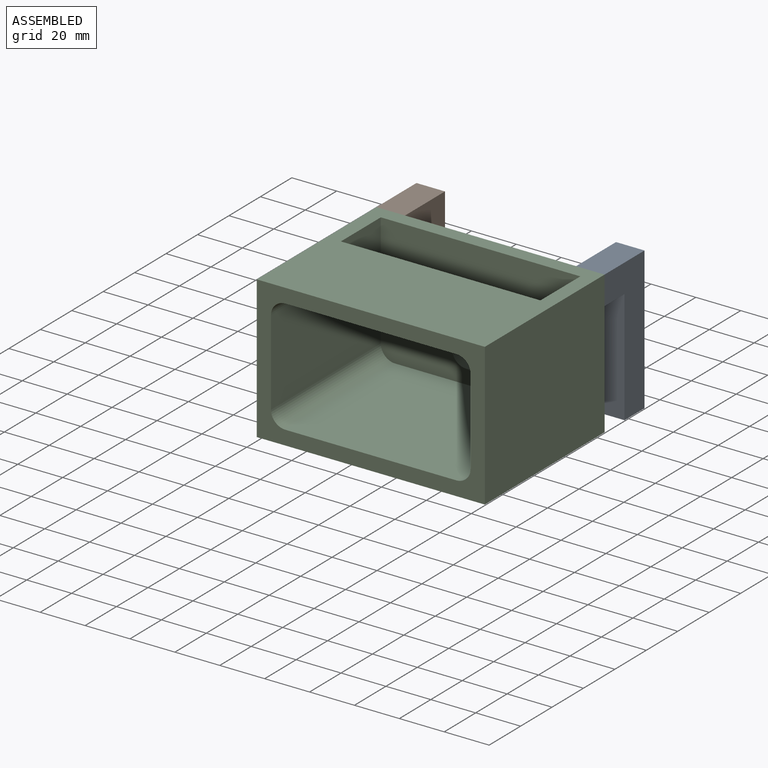
[diagram: assembled view]
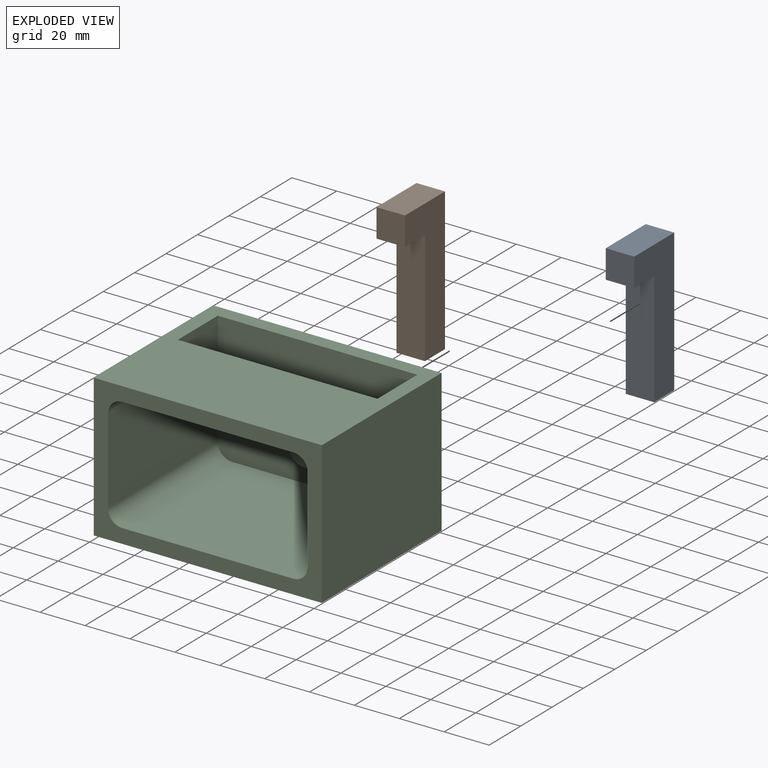
[diagram: exploded view]
GUIDED TOUR — MATED ASSEMBLY (Onshape document c29f472299ab1ee7a8cfc80d, AutoMate assembly c29f472299ab1ee7a8cfc80d_6158fed800e48f48e751c863_6c2c850addefeda473bd967e_default)

This assembly has 3 components, labeled P0..P2 below (a component is one placed occurrence of a part; the same part can appear more than once), held together by 2 mates. A mate is a constraint between two components; its type names the relative motion it leaves free:
  FASTENED — locks the two components together rigidly (no relative motion).
Axis/direction vectors are unit vectors and 'through' points are millimeter coordinates, both in the assembly's world frame.

MATES
  1. FASTENED "Fastened 3": P1 <-> P2, direction (0.000, -1.000, 0.000) through (-119.11, 41.29, 67.26) mm
  2. FASTENED "Fastened 2": P2 <-> P0, direction (0.000, 1.000, 0.000) through (-17.51, 41.29, 67.26) mm

ASSEMBLY ORDER
  1. P1 — the base component [order verified]
  2. P0 [order verified]
  3. P2 [order verified]
Order-tag legend:
  [order verified] — this step's position reverses a verified removal order: the component was checked to insert without passing through the ones already placed.

Of the 3 components, 3 carry the full construction recipe — the FeatureScript program that regenerates the part's solid from scratch; the rest are supplied as boundary geometry only.
Each toured component is shown spotlighted twice — in the assembled view, then in the exploded view, where a leader line traces a displaced component back to its assembled socket (saturated green if recipe-attached, orange if geometry-only; every other component desaturated gray) — followed by its recipe or geometry summary and the mates that hold it.
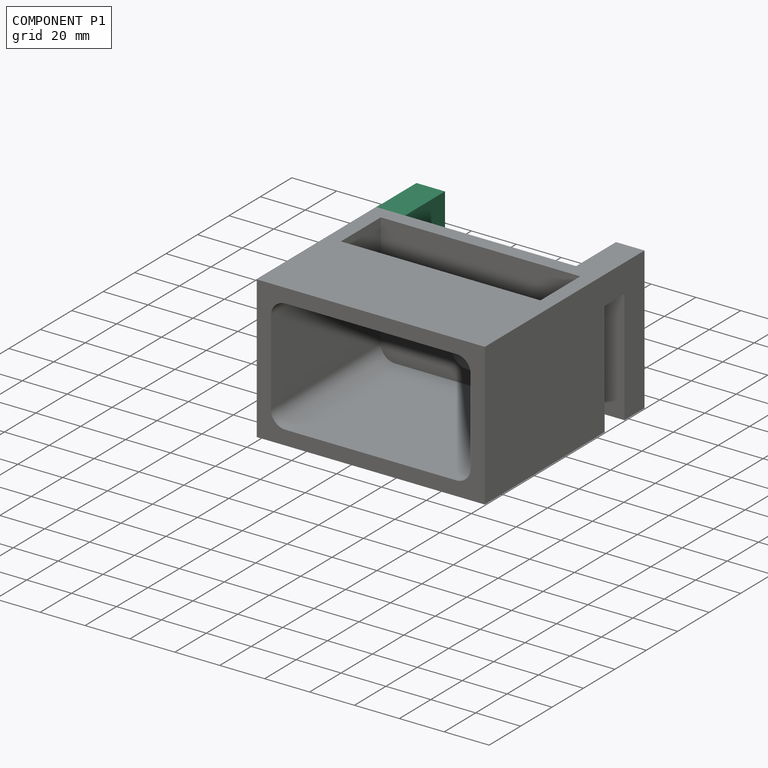
[diagram: component P1 — assembled]
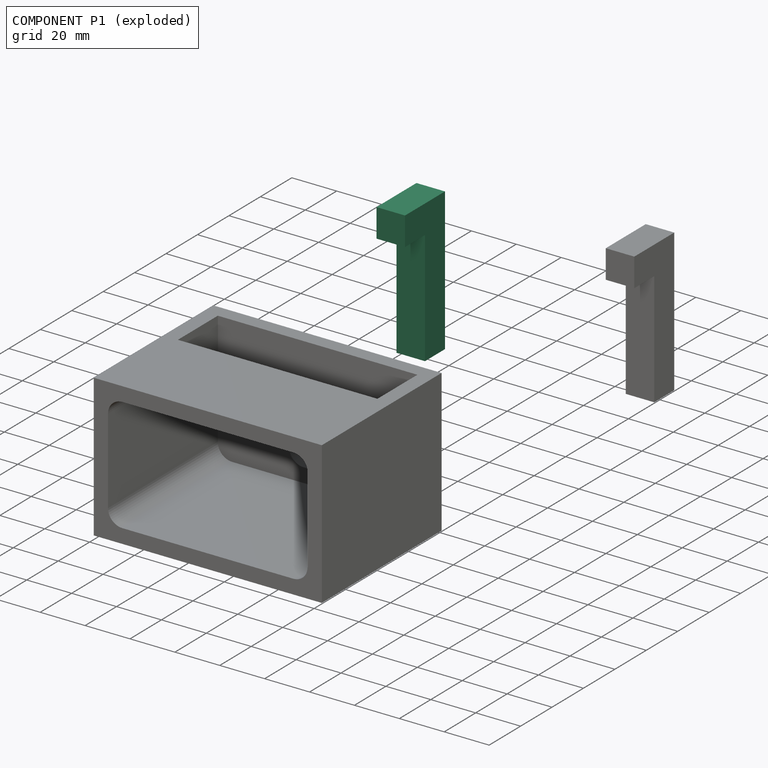
[diagram: component P1 — exploded]
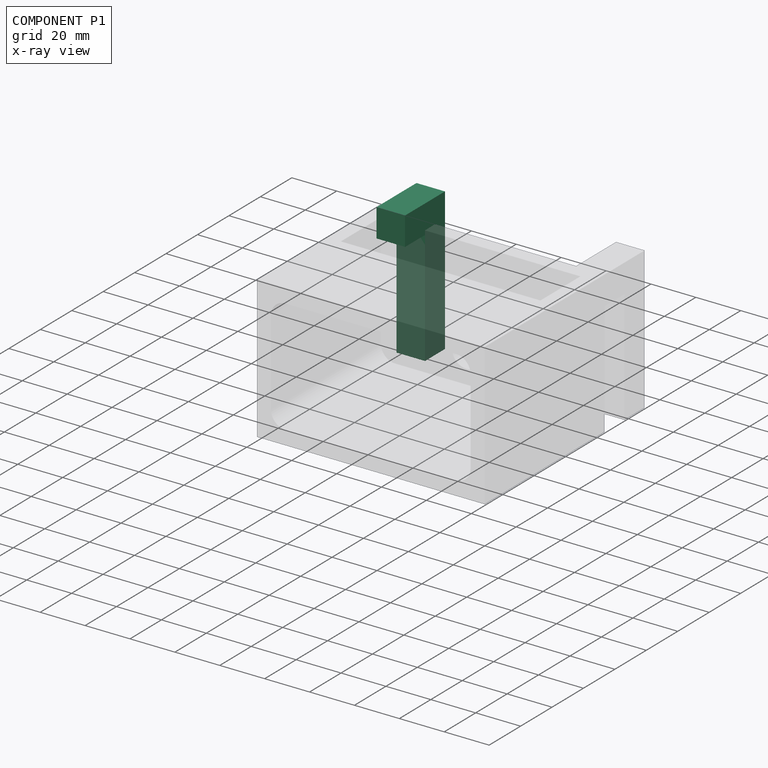
[diagram: component P1 — x-ray view]
COMPONENT P1 — same part as P0 (CADFS 00564984); its construction recipe is shown at P0.
Held by: FASTENED mate "Fastened 3" to P2.
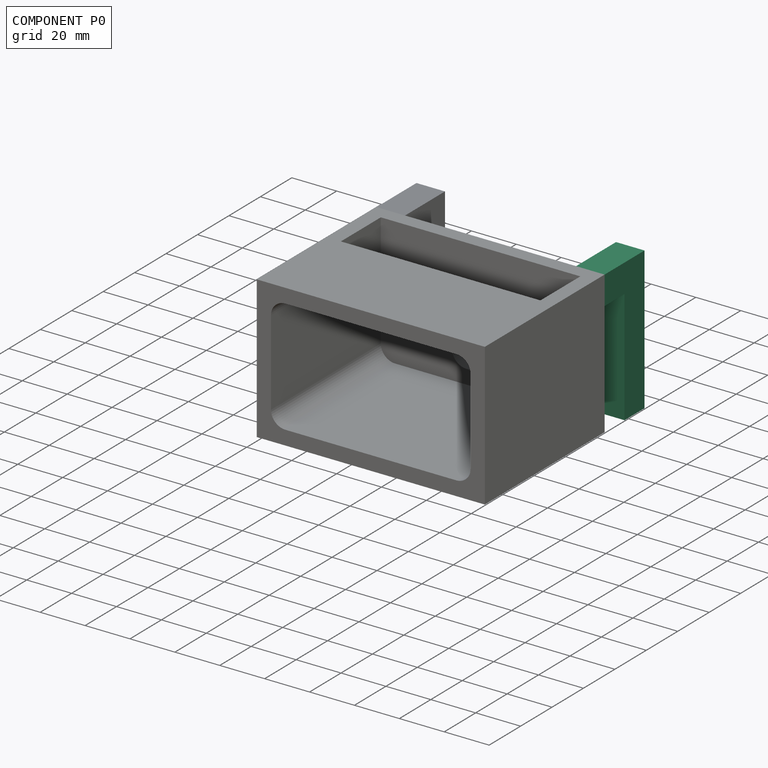
[diagram: component P0 — assembled]
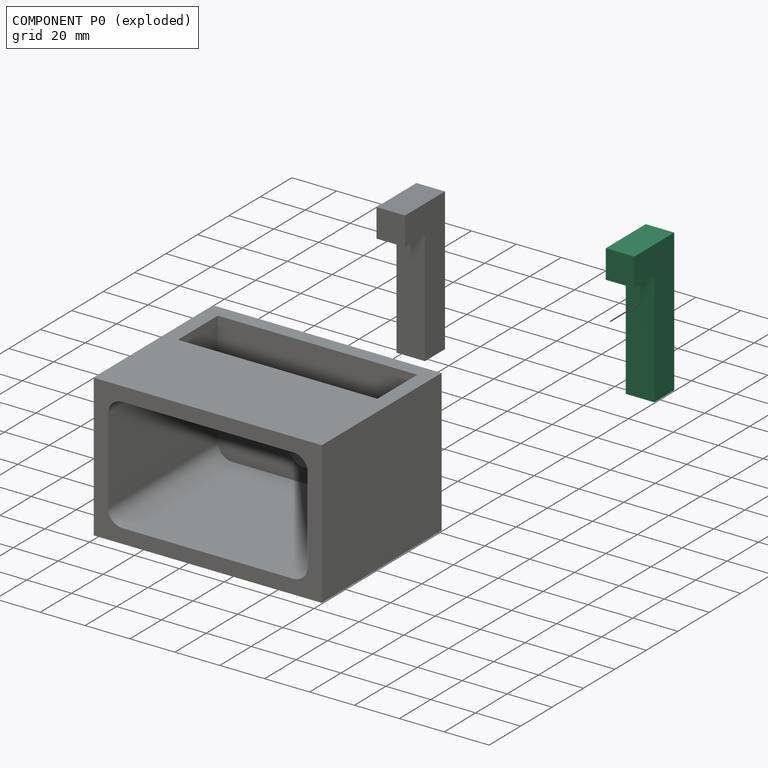
[diagram: component P0 — exploded]
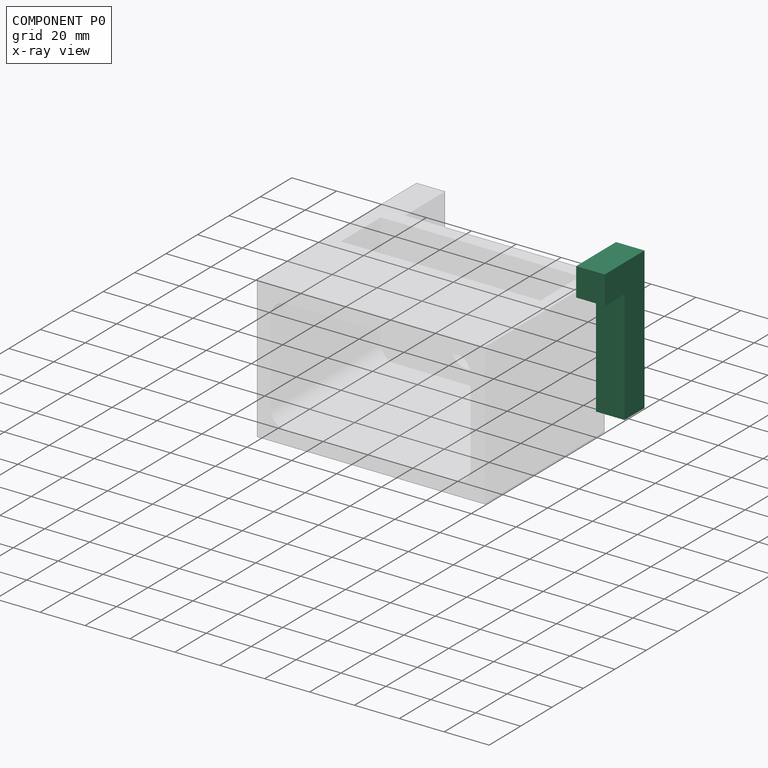
[diagram: component P0 — x-ray view]
COMPONENT P0 — recipe-attached (CADFS 00564984, mesh-verified: the recipe's output STEP matches this component's geometry to below the mesh-comparison resolution (tessellation chordal tolerance ~0.104 mm)).
Held by: FASTENED mate "Fastened 2" to P2.
Construction recipe (FeatureScript — the CAD program that rebuilds this solid; sketch coordinates are in the units given by the * unit suffixes, e.g. mm):

FeatureScript 1511;
import(path : "onshape/std/geometry.fs", version : "1511.0");
import(path : "onshape/std/common.fs", version : "1511.0");
const mm = millimeter;
const VERTEX = EntityType.VERTEX;
const EDGE = EntityType.EDGE;
const FACE = EntityType.FACE;
const BODY = EntityType.BODY;
function v(x, y){return vector(x, y);}
function OD(order){return orderDisambiguation(order);}
function OSD(set){return originalSetDisambiguation(set);}
function TD(topology){return topologyDisambiguation(topology);}
function TDD(query){return trueDependencyDisambiguation(query);}
function sQuery(a, b, c) {return sketchEntityQuery(a, b, c);}

annotation { "Feature Type Name" : "Feature", "Feature Type Description" : "" }
export const myFeature = defineFeature(function(context is Context, id is Id, definition is map)
    precondition{}
    {
        {
            var Q0;
            Q0=qCreatedBy(makeId("Top.planeOp"),FACE);
            var sketch = newSketch(context, id + "F0", { "sketchPlane" : qUnion([Q0])});
            skLineSegment(sketch, "E0.bottom", {"start": v(-34.09, 36.8) * mm, "end": v(-21.39, 36.8) * mm});
            skLineSegment(sketch, "E0.top", {"start": v(-34.09, 24.1) * mm, "end": v(-21.39, 24.1) * mm});
            skLineSegment(sketch, "E0.left", {"start": v(-34.09, 36.8) * mm, "end": v(-34.09, 24.1) * mm});
            skLineSegment(sketch, "E0.right", {"start": v(-21.39, 36.8) * mm, "end": v(-21.39, 24.1) * mm});
            skSolve(sketch);
        }
        {
            var Q0;
            Q0=makeQuery(id+"F0.imprint","IMPRINT",FACE,{"disambiguationData":[TD([[makeQuery(id+"F0.imprint","IMPRINT",EDGE,{"derivedFrom":sQuery(id+"F0.wireOp",EDGE,"E0.bottom")}),-1.0]])]});
            extrude(context, id + "F1", {"entities" : qUnion([Q0]), "depth" : 63.5 * mm, "offsetDistance" : 25.4 * mm});
        }
        {
            var Q0;
            Q0=makeQuery(id+"F1.opExtrude","SWEPT_FACE",FACE,{"disambiguationData":[OSD([sQuery(id+"F0.wireOp",EDGE,"E0.top")])]});
            var sketch = newSketch(context, id + "F2", { "sketchPlane" : qUnion([Q0])});
            skLineSegment(sketch, "E1.bottom", {"start": v(-34.09, 63.5) * mm, "end": v(-21.39, 63.5) * mm});
            skLineSegment(sketch, "E1.top", {"start": v(-34.09, 50.8) * mm, "end": v(-21.39, 50.8) * mm});
            skLineSegment(sketch, "E1.left", {"start": v(-34.09, 63.5) * mm, "end": v(-34.09, 50.8) * mm});
            skLineSegment(sketch, "E1.right", {"start": v(-21.39, 63.5) * mm, "end": v(-21.39, 50.8) * mm});
            skSolve(sketch);
        }
        {
            var Q0;
            Q0=makeQuery(id+"F2.imprint","IMPRINT",FACE,{"disambiguationData":[TD([[makeQuery(id+"F2.imprint","IMPRINT",EDGE,{"derivedFrom":sQuery(id+"F2.wireOp",EDGE,"E1.bottom")}),-1.0]])]});
            extrude(context, id + "F3", {"entities" : qUnion([Q0]), "operationType" : NewBodyOperationType.ADD, "depth" : 12.7 * mm, "offsetDistance" : 25.4 * mm});
        }
    });
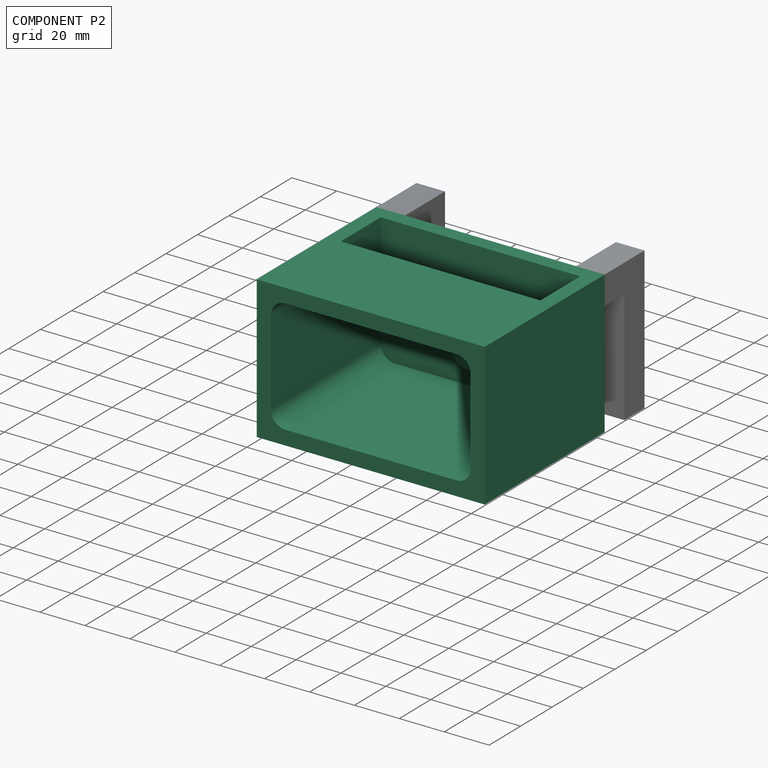
[diagram: component P2 — assembled]
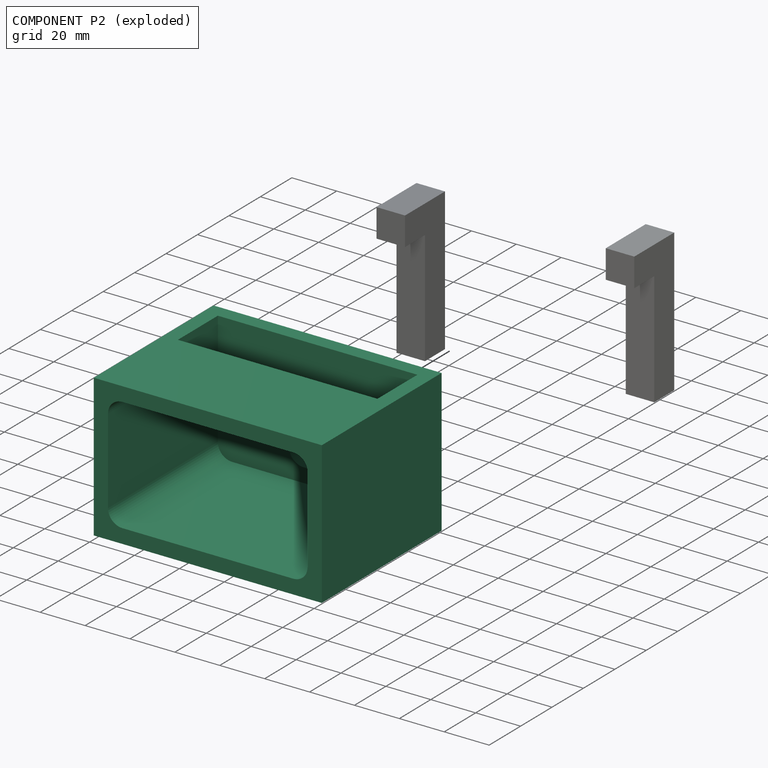
[diagram: component P2 — exploded]
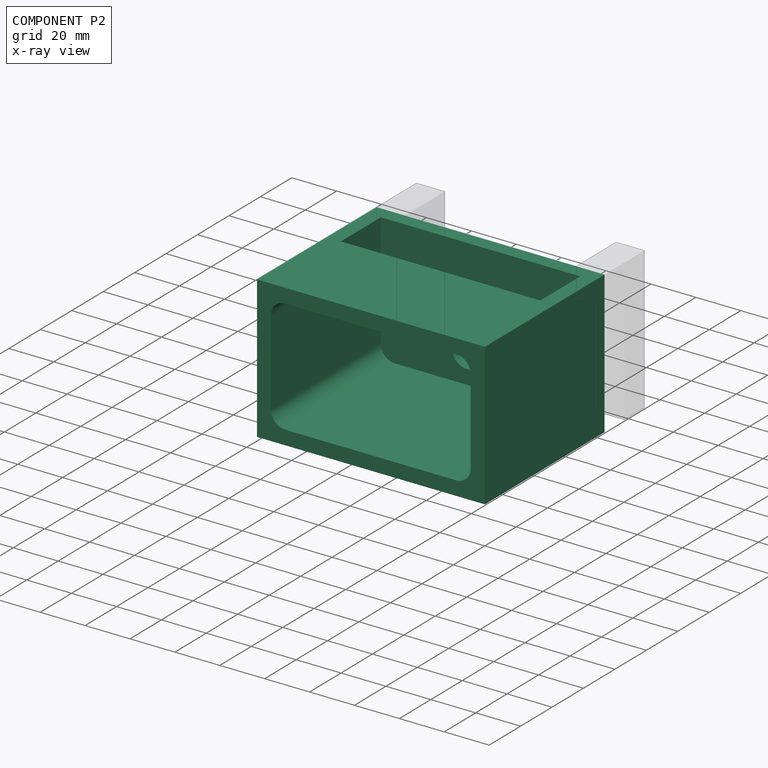
[diagram: component P2 — x-ray view]
COMPONENT P2 — recipe-attached (CADFS 00564983, mesh-verified: the recipe's output STEP matches this component's geometry to below the mesh-comparison resolution (tessellation chordal tolerance ~0.213 mm)).
Held by: FASTENED mate "Fastened 3" to P1; FASTENED mate "Fastened 2" to P0.
Construction recipe (FeatureScript — the CAD program that rebuilds this solid; sketch coordinates are in the units given by the * unit suffixes, e.g. mm):

FeatureScript 1511;
import(path : "onshape/std/geometry.fs", version : "1511.0");
import(path : "onshape/std/common.fs", version : "1511.0");
const mm = millimeter;
const VERTEX = EntityType.VERTEX;
const EDGE = EntityType.EDGE;
const FACE = EntityType.FACE;
const BODY = EntityType.BODY;
function v(x, y){return vector(x, y);}
function OD(order){return orderDisambiguation(order);}
function OSD(set){return originalSetDisambiguation(set);}
function TD(topology){return topologyDisambiguation(topology);}
function TDD(query){return trueDependencyDisambiguation(query);}
function sQuery(a, b, c) {return sketchEntityQuery(a, b, c);}

annotation { "Feature Type Name" : "Feature", "Feature Type Description" : "" }
export const myFeature = defineFeature(function(context is Context, id is Id, definition is map)
    precondition{}
    {
        {
            var Q0;
            Q0=qCreatedBy(makeId("Top.planeOp"),FACE);
            var sketch = newSketch(context, id + "F0", { "sketchPlane" : qUnion([Q0])});
            skLineSegment(sketch, "E0.bottom", {"start": v(-100.44, 31.9) * mm, "end": v(1.16, 31.9) * mm});
            skLineSegment(sketch, "E0.top", {"start": v(-100.44, -44.3) * mm, "end": v(1.16, -44.3) * mm});
            skLineSegment(sketch, "E0.left", {"start": v(-100.44, 31.9) * mm, "end": v(-100.44, -44.3) * mm});
            skLineSegment(sketch, "E0.right", {"start": v(1.16, 31.9) * mm, "end": v(1.16, -44.3) * mm});
            skSolve(sketch);
        }
        {
            var Q0;
            Q0=makeQuery(id+"F0.imprint","IMPRINT",FACE,{"disambiguationData":[TD([[makeQuery(id+"F0.imprint","IMPRINT",EDGE,{"derivedFrom":sQuery(id+"F0.wireOp",EDGE,"E0.bottom")}),-1.0]])]});
            extrude(context, id + "F1", {"entities" : qUnion([Q0]), "depth" : 63.5 * mm, "offsetDistance" : 25.4 * mm});
        }
        {
            var Q0;
            Q0=makeQuery(id+"F1.opExtrude","SWEPT_FACE",FACE,{"disambiguationData":[OSD([sQuery(id+"F0.wireOp",EDGE,"E0.top")])]});
            var sketch = newSketch(context, id + "F2", { "sketchPlane" : qUnion([Q0])});
            skLineSegment(sketch, "E1.bottom", {"start": v(-87.74, 57.15) * mm, "end": v(-11.54, 57.15) * mm});
            skLineSegment(sketch, "E1.top", {"start": v(-87.74, 6.35) * mm, "end": v(-11.54, 6.35) * mm});
            skLineSegment(sketch, "E1.left", {"start": v(-94.1, 50.8) * mm, "end": v(-94.1, 12.7) * mm});
            skLineSegment(sketch, "E1.right", {"start": v(-5.2, 50.8) * mm, "end": v(-5.2, 12.7) * mm});
            skPoint(sketch, "E2.visualSharp", {"position": v(-94.1, 57.15) * mm});
            skArc(sketch, "E2.filletArc", {"start": v(-87.74, 57.15) * mm, "mid": v(-92.23, 55.3) * mm, "end": v(-94.1, 50.8) * mm});
            skPoint(sketch, "E3.visualSharp", {"position": v(-94.1, 6.35) * mm});
            skArc(sketch, "E3.filletArc", {"start": v(-94.1, 12.7) * mm, "mid": v(-92.23, 8.2) * mm, "end": v(-87.74, 6.35) * mm});
            skPoint(sketch, "E4.visualSharp", {"position": v(-5.2, 6.35) * mm});
            skArc(sketch, "E4.filletArc", {"start": v(-11.54, 6.35) * mm, "mid": v(-7.05, 8.2) * mm, "end": v(-5.2, 12.7) * mm});
            skPoint(sketch, "E5.visualSharp", {"position": v(-5.2, 57.15) * mm});
            skArc(sketch, "E5.filletArc", {"start": v(-5.2, 50.8) * mm, "mid": v(-7.05, 55.3) * mm, "end": v(-11.54, 57.15) * mm});
            skSolve(sketch);
        }
        {
            var Q0;
            Q0 = qSketchRegion(id + "F2", true);
            extrude(context, id + "F3", {"entities" : qUnion([Q0]), "operationType" : NewBodyOperationType.REMOVE, "oppositeDirection" : true, "depth" : 69.85 * mm, "offsetDistance" : 25.4 * mm});
        }
        {
            var Q0;
            Q0=makeQuery(id+"F1.opExtrude","CAP_FACE",FACE,{"disambiguationData":[OSD([sQuery(id+"F0.wireOp",EDGE,"E0.bottom"),sQuery(id+"F0.wireOp",EDGE,"E0.top"),sQuery(id+"F0.wireOp",EDGE,"E0.left"),sQuery(id+"F0.wireOp",EDGE,"E0.right")])],"isStart":false});
            var sketch = newSketch(context, id + "F4", { "sketchPlane" : qUnion([Q0])});
            skLineSegment(sketch, "E6.bottom", {"start": v(-94.1, 25.56) * mm, "end": v(-5.2, 25.56) * mm});
            skLineSegment(sketch, "E6.top", {"start": v(-94.1, 0.16) * mm, "end": v(-5.2, 0.16) * mm});
            skLineSegment(sketch, "E6.left", {"start": v(-94.1, 25.56) * mm, "end": v(-94.1, 0.16) * mm});
            skLineSegment(sketch, "E6.right", {"start": v(-5.2, 25.56) * mm, "end": v(-5.2, 0.16) * mm});
            skSolve(sketch);
        }
        {
            var Q0;
            Q0 = qSketchRegion(id + "F4", true);
            extrude(context, id + "F5", {"entities" : qUnion([Q0]), "operationType" : NewBodyOperationType.REMOVE, "oppositeDirection" : true, "depth" : 25.4 * mm, "offsetDistance" : 25.4 * mm});
        }
        {
            var Q0;
            Q0=makeQuery(id+"F5.boolean.opBoolean","MERGE",FACE,{"derivedFrom":[makeQuery(id+"F3.boolean.opBoolean","COPY",FACE,{"derivedFrom":makeQuery(id+"F3.opExtrude","CAP_FACE",FACE,{"disambiguationData":[OSD([sQuery(id+"F2.wireOp",EDGE,"E1.bottom"),sQuery(id+"F2.wireOp",EDGE,"E1.top"),sQuery(id+"F2.wireOp",EDGE,"E1.left"),sQuery(id+"F2.wireOp",EDGE,"E1.right"),sQuery(id+"F2.wireOp",EDGE,"E2.filletArc"),sQuery(id+"F2.wireOp",EDGE,"E3.filletArc"),sQuery(id+"F2.wireOp",EDGE,"E4.filletArc"),sQuery(id+"F2.wireOp",EDGE,"E5.filletArc")])],"isStart":false})}),makeQuery(id+"F5.opExtrude","SWEPT_FACE",FACE,{"disambiguationData":[OSD([sQuery(id+"F4.wireOp",EDGE,"E6.bottom")])]})]});
            var sketch = newSketch(context, id + "F6", { "sketchPlane" : qUnion([Q0])});
            skLineSegment(sketch, "E7.bottom", {"start": v(-56, 29.2) * mm, "end": v(-43.3, 29.2) * mm});
            skLineSegment(sketch, "E7.top", {"start": v(-56, 12.7) * mm, "end": v(-43.3, 12.7) * mm});
            skLineSegment(sketch, "E7.left", {"start": v(-62.34, 22.86) * mm, "end": v(-62.34, 19.05) * mm});
            skLineSegment(sketch, "E7.right", {"start": v(-36.94, 22.86) * mm, "end": v(-36.94, 19.05) * mm});
            skPoint(sketch, "E8.visualSharp", {"position": v(-62.34, 29.2) * mm});
            skArc(sketch, "E8.filletArc", {"start": v(-56, 29.2) * mm, "mid": v(-60.48, 27.35) * mm, "end": v(-62.34, 22.86) * mm});
            skPoint(sketch, "E9.visualSharp", {"position": v(-62.34, 12.7) * mm});
            skArc(sketch, "E9.filletArc", {"start": v(-62.34, 19.05) * mm, "mid": v(-60.48, 14.56) * mm, "end": v(-56, 12.7) * mm});
            skPoint(sketch, "E10.visualSharp", {"position": v(-36.94, 29.2) * mm});
            skArc(sketch, "E10.filletArc", {"start": v(-36.94, 22.86) * mm, "mid": v(-38.8, 27.35) * mm, "end": v(-43.3, 29.2) * mm});
            skPoint(sketch, "E11.visualSharp", {"position": v(-36.94, 12.7) * mm});
            skArc(sketch, "E11.filletArc", {"start": v(-43.3, 12.7) * mm, "mid": v(-38.8, 14.56) * mm, "end": v(-36.94, 19.05) * mm});
            skSolve(sketch);
        }
        {
            var Q0;
            Q0=makeQuery(id+"F6.imprint","IMPRINT",FACE,{"disambiguationData":[TD([[makeQuery(id+"F6.imprint","IMPRINT",EDGE,{"derivedFrom":sQuery(id+"F6.wireOp",EDGE,"E7.bottom")}),-1.0]])]});
            extrude(context, id + "F7", {"entities" : qUnion([Q0]), "operationType" : NewBodyOperationType.REMOVE, "oppositeDirection" : true, "depth" : 25.4 * mm, "offsetDistance" : 25.4 * mm});
        }
        {
            var Q0;
            Q0=makeQuery(id+"F5.boolean.opBoolean","MERGE",FACE,{"derivedFrom":[makeQuery(id+"F3.boolean.opBoolean","COPY",FACE,{"derivedFrom":makeQuery(id+"F3.opExtrude","CAP_FACE",FACE,{"disambiguationData":[OSD([sQuery(id+"F2.wireOp",EDGE,"E1.bottom"),sQuery(id+"F2.wireOp",EDGE,"E1.top"),sQuery(id+"F2.wireOp",EDGE,"E1.left"),sQuery(id+"F2.wireOp",EDGE,"E1.right"),sQuery(id+"F2.wireOp",EDGE,"E2.filletArc"),sQuery(id+"F2.wireOp",EDGE,"E3.filletArc"),sQuery(id+"F2.wireOp",EDGE,"E4.filletArc"),sQuery(id+"F2.wireOp",EDGE,"E5.filletArc")])],"isStart":false})}),makeQuery(id+"F5.opExtrude","SWEPT_FACE",FACE,{"disambiguationData":[OSD([sQuery(id+"F4.wireOp",EDGE,"E6.bottom")])]})]});
            var sketch = newSketch(context, id + "F8", { "sketchPlane" : qUnion([Q0])});
            skLineSegment(sketch, "E12.bottom", {"start": v(-94.1, 41.28) * mm, "end": v(-5.2, 41.28) * mm});
            skLineSegment(sketch, "E12.top", {"start": v(-94.1, 44.45) * mm, "end": v(-5.2, 44.45) * mm});
            skLineSegment(sketch, "E12.left", {"start": v(-94.1, 41.28) * mm, "end": v(-94.1, 44.45) * mm});
            skLineSegment(sketch, "E12.right", {"start": v(-5.2, 41.28) * mm, "end": v(-5.2, 44.45) * mm});
            skSolve(sketch);
        }
        {
            var Q0;
            Q0 = qSketchRegion(id + "F8", true);
            extrude(context, id + "F9", {"entities" : qUnion([Q0]), "operationType" : NewBodyOperationType.ADD, "depth" : 31.75 * mm, "offsetDistance" : 25.4 * mm});
        }
        {
            var Q0;
            Q0=makeQuery(id+"F1.opExtrude","CAP_FACE",FACE,{"disambiguationData":[OSD([sQuery(id+"F0.wireOp",EDGE,"E0.bottom"),sQuery(id+"F0.wireOp",EDGE,"E0.top"),sQuery(id+"F0.wireOp",EDGE,"E0.left"),sQuery(id+"F0.wireOp",EDGE,"E0.right")])],"isStart":false});
            var sketch = newSketch(context, id + "F10", { "sketchPlane" : qUnion([Q0])});
            skPoint(sketch, "E13.oppositeSnap0", {"position": v(1.16, -6.2) * mm});
            skLineSegment(sketch, "E13.bottom", {"start": v(-94.1, 0.16) * mm, "end": v(-5.2, 0.16) * mm});
            skLineSegment(sketch, "E13.top", {"start": v(-94.1, -6.2) * mm, "end": v(-5.2, -6.2) * mm});
            skLineSegment(sketch, "E13.left", {"start": v(-94.1, 0.16) * mm, "end": v(-94.1, -6.2) * mm});
            skLineSegment(sketch, "E13.right", {"start": v(-5.2, 0.16) * mm, "end": v(-5.2, -6.2) * mm});
            skSolve(sketch);
        }
        {
            var Q0;
            Q0 = qSketchRegion(id + "F10", true);
            extrude(context, id + "F11", {"entities" : qUnion([Q0]), "operationType" : NewBodyOperationType.ADD, "oppositeDirection" : true, "depth" : 19.05 * mm, "offsetDistance" : 25.4 * mm});
        }
        {
            var Q0;
            Q0=makeQuery(id+"F9.opExtrude","SWEPT_FACE",FACE,{"disambiguationData":[OSD([sQuery(id+"F8.wireOp",EDGE,"E12.top")])]});
            var sketch = newSketch(context, id + "F12", { "sketchPlane" : qUnion([Q0])});
            skLineSegment(sketch, "E14.bottom", {"start": v(-90.92, 10.95) * mm, "end": v(-8.37, 10.95) * mm});
            skLineSegment(sketch, "E14.top", {"start": v(-90.92, 3.33) * mm, "end": v(-8.37, 3.33) * mm});
            skLineSegment(sketch, "E14.left", {"start": v(-90.92, 10.95) * mm, "end": v(-90.92, 3.33) * mm});
            skLineSegment(sketch, "E14.right", {"start": v(-8.37, 10.95) * mm, "end": v(-8.37, 3.33) * mm});
            skSolve(sketch);
        }
        {
            var Q0;
            Q0=makeQuery(id+"F12.imprint","IMPRINT",FACE,{"disambiguationData":[TD([[makeQuery(id+"F12.imprint","IMPRINT",EDGE,{"derivedFrom":sQuery(id+"F12.wireOp",EDGE,"E14.bottom")}),-1.0]])]});
            extrude(context, id + "F13", {"entities" : qUnion([Q0]), "operationType" : NewBodyOperationType.REMOVE, "oppositeDirection" : true, "depth" : 25.4 * mm, "offsetDistance" : 25.4 * mm});
        }
    });
PROVENANCE & LICENSES
Assembly (occurrences, transforms, mates, per-part STEP geometry): AutoMate dataset, Zenodo record 7776208, CC0.
Construction recipes: CADFS (HuggingFace VladPyatov/CADFS, CC-BY-4.0, layered over the ABC dataset), FeatureScript reconstruction programs keyed by ABC model id.
Join: ABC meta listings map ABC model id -> Onshape documentId; within a shared document, parts are matched by geometric signature (bounding-box dims + volume at 0.1% relative tolerance, exact B-rep face/solid counts).
Verification: 3 of this assembly's 3 components carry a recipe attachment, and every attachment is mesh-verified: the CADFS STEP and the AutoMate member STEP were compared as meshes in their shared local frame (symmetric sampled-point-to-mesh distance); worst across the 3 attachments: below the mesh-comparison resolution (tessellation chordal tolerance ~0.213 mm) on a 142 mm part.
Renders: orthographic iso camera (az 35 / el 25); the floor grid conveys scale (grid pitch printed in each image; no ruler). In the exploded view each component is displaced by its stored offset vector: the offsets alone carry the explosion direction (mate normal/axis signs are not orientation cues and do not encode it), and separation distances are assigned per mate-chain, not proportionally to assembly-order depth.
